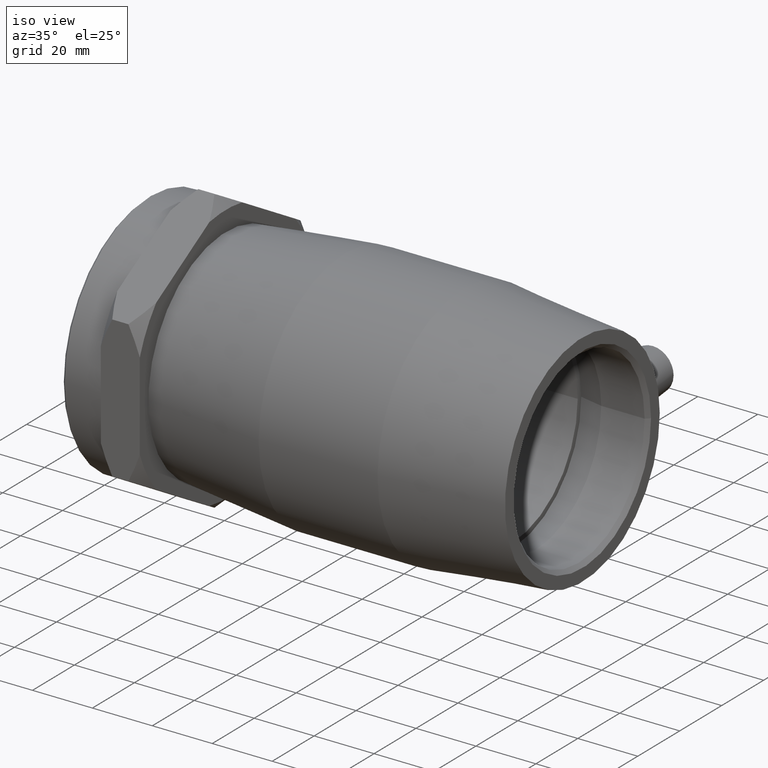
[diagram: clean part render]
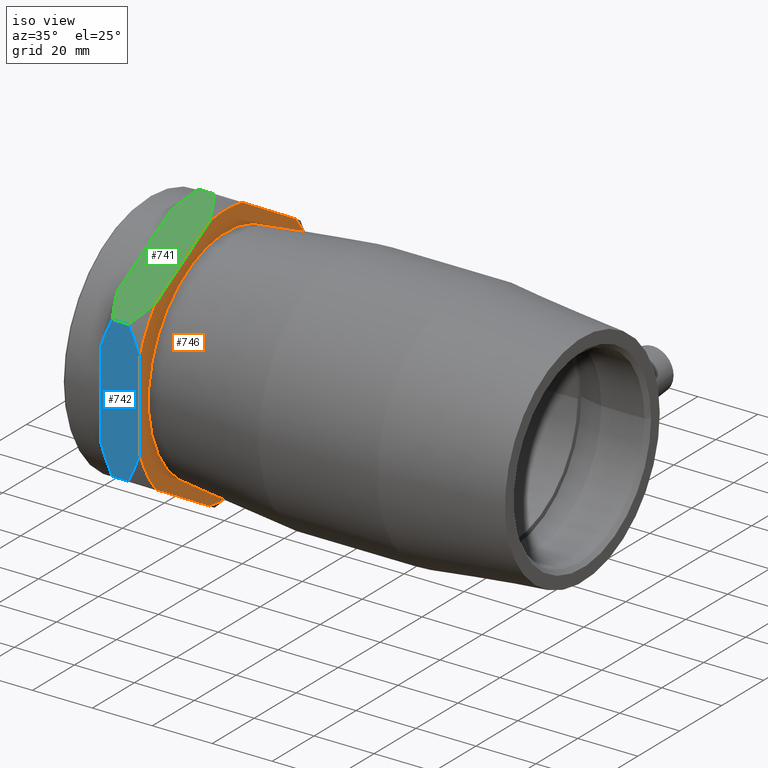
[diagram: same view with three faces highlighted in distinct colors, each labeled with its STEP entity id]
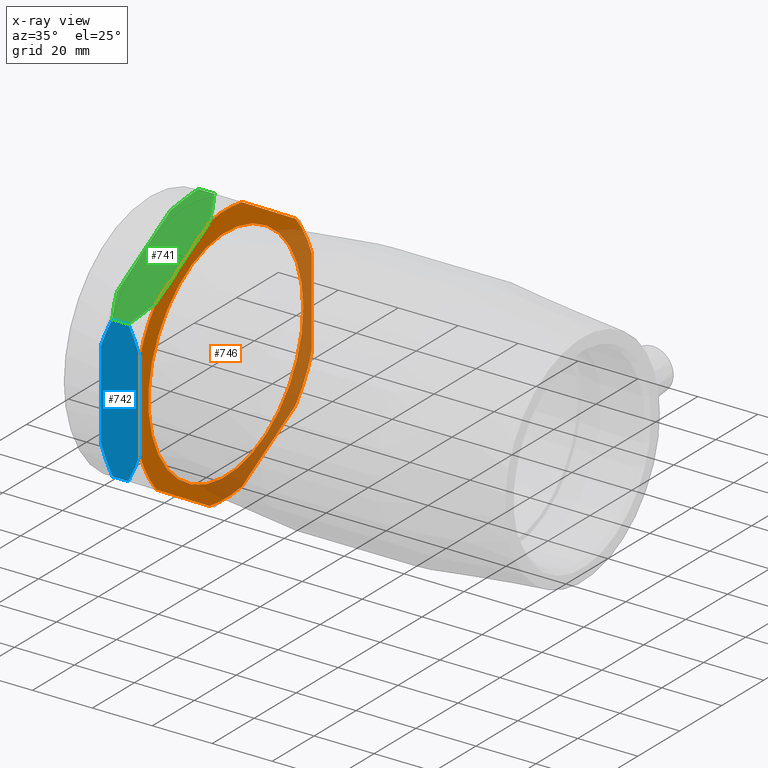
[diagram: x-ray of the same camera — body ghosted, the three highlighted faces saturated]
A machine part, iso view with three faces highlighted in distinct colors.
The next image is the same camera in x-ray (body ghosted, the three faces saturated) — at least one of them is partly hidden behind the body in this view.
Their STEP definitions:

[orange] entity #746 — the highlighted planar face has unit normal (1, 0, 0).
#26=LINE('',#1276,#50);
#30=LINE('',#1281,#54);
#35=LINE('',#1289,#59);
#38=LINE('',#1293,#62);
#39=LINE('',#1295,#63);
#40=LINE('',#1297,#64);
#50=VECTOR('',#982,29.3236181651827);
#54=VECTOR('',#988,29.3236181651827);
#59=VECTOR('',#999,29.3236181651827);
#62=VECTOR('',#1004,29.3236181651827);
#63=VECTOR('',#1007,29.3236181651827);
#64=VECTOR('',#1010,29.3236181651827);
#114=PLANE('',#831);
#133=FACE_BOUND('',#252,.T.);
#187=FACE_OUTER_BOUND('',#251,.T.);
#251=EDGE_LOOP('',(#641,#642,#643,#644,#645,#646,#647,#648,#649,#650,#651,
#652));
#252=EDGE_LOOP('',(#653));
#312=CIRCLE('',#804,43.5427220735493);
#313=CIRCLE('',#806,43.5427220735493);
#314=CIRCLE('',#808,43.5427220735493);
#315=CIRCLE('',#810,43.5427220735493);
#316=CIRCLE('',#812,43.5427220735493);
#317=CIRCLE('',#814,43.5427220735493);
#320=CIRCLE('',#832,36.9);
#369=VERTEX_POINT('',#1197);
#371=VERTEX_POINT('',#1202);
#372=VERTEX_POINT('',#1208);
#374=VERTEX_POINT('',#1213);
#376=VERTEX_POINT('',#1220);
#377=VERTEX_POINT('',#1224);
#379=VERTEX_POINT('',#1231);
#380=VERTEX_POINT('',#1235);
#381=VERTEX_POINT('',#1241);
#383=VERTEX_POINT('',#1246);
#384=VERTEX_POINT('',#1252);
#386=VERTEX_POINT('',#1257);
#389=VERTEX_POINT('',#1305);
#441=EDGE_CURVE('',#371,#369,#312,.T.);
#444=EDGE_CURVE('',#374,#372,#313,.T.);
#448=EDGE_CURVE('',#376,#377,#314,.T.);
#451=EDGE_CURVE('',#379,#380,#315,.T.);
#453=EDGE_CURVE('',#383,#381,#316,.T.);
#456=EDGE_CURVE('',#386,#384,#317,.T.);
#467=EDGE_CURVE('',#386,#380,#26,.T.);
#471=EDGE_CURVE('',#383,#384,#30,.T.);
#476=EDGE_CURVE('',#374,#377,#35,.T.);
#479=EDGE_CURVE('',#371,#372,#38,.T.);
#480=EDGE_CURVE('',#379,#369,#39,.T.);
#481=EDGE_CURVE('',#376,#381,#40,.T.);
#484=EDGE_CURVE('',#389,#389,#320,.T.);
#641=ORIENTED_EDGE('',*,*,#456,.T.);
#642=ORIENTED_EDGE('',*,*,#471,.F.);
#643=ORIENTED_EDGE('',*,*,#453,.T.);
#644=ORIENTED_EDGE('',*,*,#481,.F.);
#645=ORIENTED_EDGE('',*,*,#448,.T.);
#646=ORIENTED_EDGE('',*,*,#476,.F.);
#647=ORIENTED_EDGE('',*,*,#444,.T.);
#648=ORIENTED_EDGE('',*,*,#479,.F.);
#649=ORIENTED_EDGE('',*,*,#441,.T.);
#650=ORIENTED_EDGE('',*,*,#480,.F.);
#651=ORIENTED_EDGE('',*,*,#451,.T.);
#652=ORIENTED_EDGE('',*,*,#467,.F.);
#653=ORIENTED_EDGE('',*,*,#484,.F.);
#746=ADVANCED_FACE('',(#187,#133),#114,.T.);
#804=AXIS2_PLACEMENT_3D('',#1203,#941,#942);
#806=AXIS2_PLACEMENT_3D('',#1214,#945,#946);
#808=AXIS2_PLACEMENT_3D('',#1228,#949,#950);
#810=AXIS2_PLACEMENT_3D('',#1239,#953,#954);
#812=AXIS2_PLACEMENT_3D('',#1247,#957,#958);
#814=AXIS2_PLACEMENT_3D('',#1258,#961,#962);
#831=AXIS2_PLACEMENT_3D('',#1304,#1019,#1020);
#832=AXIS2_PLACEMENT_3D('',#1306,#1021,#1022);
#941=DIRECTION('center_axis',(1.,0.,0.));
#942=DIRECTION('ref_axis',(0.,0.,1.));
#945=DIRECTION('center_axis',(1.,0.,0.));
#946=DIRECTION('ref_axis',(0.,0.,1.));
#949=DIRECTION('center_axis',(1.,0.,0.));
#950=DIRECTION('ref_axis',(0.,0.,1.));
#953=DIRECTION('center_axis',(1.,0.,0.));
#954=DIRECTION('ref_axis',(0.,0.,1.));
#957=DIRECTION('center_axis',(1.,0.,0.));
#958=DIRECTION('ref_axis',(0.,0.,1.));
#961=DIRECTION('center_axis',(1.,0.,0.));
#962=DIRECTION('ref_axis',(0.,0.,1.));
#982=DIRECTION('',(0.,-0.866025403784439,0.499999999999999));
#988=DIRECTION('',(0.,-0.866025403784438,-0.500000000000001));
#999=DIRECTION('',(0.,0.86602540378444,-0.499999999999998));
#1004=DIRECTION('',(0.,0.866025403784438,0.500000000000002));
#1007=DIRECTION('',(0.,-1.68845504170264E-15,1.));
#1010=DIRECTION('',(0.,1.5008489259579E-15,-1.));
#1019=DIRECTION('center_axis',(1.,0.,0.));
#1020=DIRECTION('ref_axis',(0.,0.,-1.));
#1021=DIRECTION('center_axis',(1.,0.,0.));
#1022=DIRECTION('ref_axis',(0.,0.,-1.));
#1197=CARTESIAN_POINT('',(-59.5,-41.,14.6618090825913));
#1202=CARTESIAN_POINT('',(-59.5,-33.1974991309616,28.1761370138663));
#1203=CARTESIAN_POINT('Origin',(-59.5,0.,0.));
#1208=CARTESIAN_POINT('',(-59.5,-7.80250086903856,42.8379460964577));
#1213=CARTESIAN_POINT('',(-59.5,7.80250086903837,42.8379460964577));
#1214=CARTESIAN_POINT('Origin',(-59.5,0.,0.));
#1220=CARTESIAN_POINT('',(-59.5,41.,14.6618090825914));
#1224=CARTESIAN_POINT('',(-59.5,33.1974991309615,28.1761370138664));
#1228=CARTESIAN_POINT('Origin',(-59.5,0.,0.));
#1231=CARTESIAN_POINT('',(-59.5,-41.,-14.6618090825914));
#1235=CARTESIAN_POINT('',(-59.5,-33.1974991309615,-28.1761370138664));
#1239=CARTESIAN_POINT('Origin',(-59.5,0.,0.));
#1241=CARTESIAN_POINT('',(-59.5,41.,-14.6618090825913));
#1246=CARTESIAN_POINT('',(-59.5,33.1974991309616,-28.1761370138663));
#1247=CARTESIAN_POINT('Origin',(-59.5,0.,0.));
#1252=CARTESIAN_POINT('',(-59.5,7.80250086903854,-42.8379460964577));
#1257=CARTESIAN_POINT('',(-59.5,-7.80250086903842,-42.8379460964577));
#1258=CARTESIAN_POINT('Origin',(-59.5,0.,0.));
#1276=CARTESIAN_POINT('',(-59.5,6.35818307594565E-14,-47.3427220735493));
#1281=CARTESIAN_POINT('',(-59.5,41.,-23.6713610367746));
#1289=CARTESIAN_POINT('',(-59.5,-8.81015690508994E-14,47.3427220735493));
#1293=CARTESIAN_POINT('',(-59.5,-41.0000000000001,23.6713610367746));
#1295=CARTESIAN_POINT('',(-59.5,-41.,-23.6713610367747));
#1297=CARTESIAN_POINT('',(-59.5,41.,23.6713610367747));
#1304=CARTESIAN_POINT('Origin',(-59.5,31.5,0.));
#1305=CARTESIAN_POINT('',(-59.5,36.9,0.));
#1306=CARTESIAN_POINT('Origin',(-59.5,0.,0.));

[blue] entity #742 — the highlighted planar face has unit normal (0, -1, -0).
#24=LINE('',#1273,#48);
#27=LINE('',#1277,#51);
#33=LINE('',#1286,#57);
#37=LINE('',#1292,#61);
#39=LINE('',#1295,#63);
#48=VECTOR('',#978,14.6618090825914);
#51=VECTOR('',#983,5.40000000000003);
#57=VECTOR('',#995,14.6618090825913);
#61=VECTOR('',#1003,5.40000000000003);
#63=VECTOR('',#1007,29.3236181651827);
#71=(
BOUNDED_CURVE()
B_SPLINE_CURVE(2,(#1166,#1167,#1168),.UNSPECIFIED.,.F.,.F.)
B_SPLINE_CURVE_WITH_KNOTS((3,3),(0.,0.978402579964024),.UNSPECIFIED.)
CURVE()
GEOMETRIC_REPRESENTATION_ITEM()
RATIONAL_B_SPLINE_CURVE((1.,1.00494997570067,1.))
REPRESENTATION_ITEM('')
);
#73=(
BOUNDED_CURVE()
B_SPLINE_CURVE(2,(#1177,#1178,#1179),.UNSPECIFIED.,.F.,.F.)
B_SPLINE_CURVE_WITH_KNOTS((3,3),(0.,0.978402579964024),.UNSPECIFIED.)
CURVE()
GEOMETRIC_REPRESENTATION_ITEM()
RATIONAL_B_SPLINE_CURVE((1.,1.0049499757007,1.))
REPRESENTATION_ITEM('')
);
#77=(
BOUNDED_CURVE()
B_SPLINE_CURVE(2,(#1199,#1200,#1201),.UNSPECIFIED.,.F.,.F.)
B_SPLINE_CURVE_WITH_KNOTS((3,3),(0.,0.978402579964024),.UNSPECIFIED.)
CURVE()
GEOMETRIC_REPRESENTATION_ITEM()
RATIONAL_B_SPLINE_CURVE((1.,1.00494997570067,1.))
REPRESENTATION_ITEM('')
);
#83=(
BOUNDED_CURVE()
B_SPLINE_CURVE(2,(#1232,#1233,#1234),.UNSPECIFIED.,.F.,.F.)
B_SPLINE_CURVE_WITH_KNOTS((3,3),(0.,0.978402579964024),.UNSPECIFIED.)
CURVE()
GEOMETRIC_REPRESENTATION_ITEM()
RATIONAL_B_SPLINE_CURVE((1.,1.0049499757007,1.))
REPRESENTATION_ITEM('')
);
#111=PLANE('',#825);
#183=FACE_OUTER_BOUND('',#245,.T.);
#245=EDGE_LOOP('',(#619,#620,#621,#622,#623,#624,#625,#626,#627));
#348=VERTEX_POINT('',#1123);
#360=VERTEX_POINT('',#1164);
#361=VERTEX_POINT('',#1165);
#363=VERTEX_POINT('',#1175);
#364=VERTEX_POINT('',#1176);
#369=VERTEX_POINT('',#1197);
#370=VERTEX_POINT('',#1198);
#378=VERTEX_POINT('',#1230);
#379=VERTEX_POINT('',#1231);
#431=EDGE_CURVE('',#360,#361,#71,.T.);
#434=EDGE_CURVE('',#363,#364,#73,.T.);
#440=EDGE_CURVE('',#369,#370,#77,.T.);
#449=EDGE_CURVE('',#378,#379,#83,.T.);
#465=EDGE_CURVE('',#348,#361,#24,.T.);
#468=EDGE_CURVE('',#378,#364,#27,.T.);
#474=EDGE_CURVE('',#363,#348,#33,.T.);
#478=EDGE_CURVE('',#370,#360,#37,.T.);
#480=EDGE_CURVE('',#379,#369,#39,.T.);
#619=ORIENTED_EDGE('',*,*,#434,.T.);
#620=ORIENTED_EDGE('',*,*,#468,.F.);
#621=ORIENTED_EDGE('',*,*,#449,.T.);
#622=ORIENTED_EDGE('',*,*,#480,.T.);
#623=ORIENTED_EDGE('',*,*,#440,.T.);
#624=ORIENTED_EDGE('',*,*,#478,.T.);
#625=ORIENTED_EDGE('',*,*,#431,.T.);
#626=ORIENTED_EDGE('',*,*,#465,.F.);
#627=ORIENTED_EDGE('',*,*,#474,.F.);
#742=ADVANCED_FACE('',(#183),#111,.T.);
#825=AXIS2_PLACEMENT_3D('',#1294,#1005,#1006);
#978=DIRECTION('',(0.,-1.68845504170264E-15,1.));
#983=DIRECTION('',(-1.,0.,0.));
#995=DIRECTION('',(0.,-1.68845504170264E-15,1.));
#1003=DIRECTION('',(-1.,0.,0.));
#1005=DIRECTION('center_axis',(0.,-1.,-1.68845504170264E-15));
#1006=DIRECTION('ref_axis',(0.,-1.4210854715202E-15,1.));
#1007=DIRECTION('',(0.,-1.68845504170264E-15,1.));
#1123=CARTESIAN_POINT('',(-72.5,-41.,-6.88338275267597E-14));
#1164=CARTESIAN_POINT('',(-68.7,-41.,23.6713610367746));
#1165=CARTESIAN_POINT('',(-72.5,-41.,14.6618090825913));
#1166=CARTESIAN_POINT('Ctrl Pts',(-68.7,-41.0000000000001,23.6713610367746));
#1167=CARTESIAN_POINT('Ctrl Pts',(-71.0465623025605,-41.0000000000001,18.9782364316536));
#1168=CARTESIAN_POINT('Ctrl Pts',(-72.5,-41.,14.6618090825913));
#1175=CARTESIAN_POINT('',(-72.5,-41.,-14.6618090825914));
#1176=CARTESIAN_POINT('',(-68.7,-41.,-23.6713610367747));
#1177=CARTESIAN_POINT('Ctrl Pts',(-72.5,-41.,-14.6618090825915));
#1178=CARTESIAN_POINT('Ctrl Pts',(-71.0465623025605,-41.,-18.9782364316537));
#1179=CARTESIAN_POINT('Ctrl Pts',(-68.7,-41.,-23.6713610367747));
#1197=CARTESIAN_POINT('',(-59.5,-41.,14.6618090825913));
#1198=CARTESIAN_POINT('',(-63.3,-41.,23.6713610367746));
#1199=CARTESIAN_POINT('Ctrl Pts',(-59.5,-41.,14.6618090825913));
#1200=CARTESIAN_POINT('Ctrl Pts',(-60.9534376974395,-41.0000000000001,18.9782364316536));
#1201=CARTESIAN_POINT('Ctrl Pts',(-63.3,-41.0000000000001,23.6713610367746));
#1230=CARTESIAN_POINT('',(-63.3,-41.,-23.6713610367747));
#1231=CARTESIAN_POINT('',(-59.5,-41.,-14.6618090825914));
#1232=CARTESIAN_POINT('Ctrl Pts',(-63.3,-41.,-23.6713610367747));
#1233=CARTESIAN_POINT('Ctrl Pts',(-60.9534376974395,-41.,-18.9782364316537));
#1234=CARTESIAN_POINT('Ctrl Pts',(-59.5,-41.,-14.6618090825915));
#1273=CARTESIAN_POINT('',(-72.5,-41.,-23.6713610367747));
#1277=CARTESIAN_POINT('',(-59.5,-41.,-23.6713610367747));
#1286=CARTESIAN_POINT('',(-72.5,-41.,-23.6713610367747));
#1292=CARTESIAN_POINT('',(-59.5,-41.0000000000001,23.6713610367746));
#1294=CARTESIAN_POINT('Origin',(-59.5,-41.,-23.6713610367747));
#1295=CARTESIAN_POINT('',(-59.5,-41.,-23.6713610367747));

[green] entity #741 — the highlighted planar face has unit normal (0, -0.5, 0.866).
#22=LINE('',#1270,#46);
#23=LINE('',#1272,#47);
#34=LINE('',#1288,#58);
#37=LINE('',#1292,#61);
#38=LINE('',#1293,#62);
#46=VECTOR('',#974,14.6618090825914);
#47=VECTOR('',#977,14.6618090825914);
#58=VECTOR('',#998,5.40000000000001);
#61=VECTOR('',#1003,5.40000000000003);
#62=VECTOR('',#1004,29.3236181651827);
#67=(
BOUNDED_CURVE()
B_SPLINE_CURVE(2,(#1144,#1145,#1146),.UNSPECIFIED.,.F.,.F.)
B_SPLINE_CURVE_WITH_KNOTS((3,3),(0.,0.978402579964025),.UNSPECIFIED.)
CURVE()
GEOMETRIC_REPRESENTATION_ITEM()
RATIONAL_B_SPLINE_CURVE((1.,1.00494997570067,1.))
REPRESENTATION_ITEM('')
);
#72=(
BOUNDED_CURVE()
B_SPLINE_CURVE(2,(#1170,#1171,#1172),.UNSPECIFIED.,.F.,.F.)
B_SPLINE_CURVE_WITH_KNOTS((3,3),(0.,0.978402579964024),.UNSPECIFIED.)
CURVE()
GEOMETRIC_REPRESENTATION_ITEM()
RATIONAL_B_SPLINE_CURVE((1.,1.00494997570078,1.))
REPRESENTATION_ITEM('')
);
#78=(
BOUNDED_CURVE()
B_SPLINE_CURVE(2,(#1204,#1205,#1206),.UNSPECIFIED.,.F.,.F.)
B_SPLINE_CURVE_WITH_KNOTS((3,3),(0.,0.978402579964024),.UNSPECIFIED.)
CURVE()
GEOMETRIC_REPRESENTATION_ITEM()
RATIONAL_B_SPLINE_CURVE((1.,1.00494997570078,1.))
REPRESENTATION_ITEM('')
);
#79=(
BOUNDED_CURVE()
B_SPLINE_CURVE(2,(#1210,#1211,#1212),.UNSPECIFIED.,.F.,.F.)
B_SPLINE_CURVE_WITH_KNOTS((3,3),(0.,0.978402579964025),.UNSPECIFIED.)
CURVE()
GEOMETRIC_REPRESENTATION_ITEM()
RATIONAL_B_SPLINE_CURVE((1.,1.00494997570067,1.))
REPRESENTATION_ITEM('')
);
#110=PLANE('',#824);
#182=FACE_OUTER_BOUND('',#244,.T.);
#244=EDGE_LOOP('',(#610,#611,#612,#613,#614,#615,#616,#617,#618));
#349=VERTEX_POINT('',#1125);
#354=VERTEX_POINT('',#1142);
#355=VERTEX_POINT('',#1143);
#360=VERTEX_POINT('',#1164);
#362=VERTEX_POINT('',#1169);
#370=VERTEX_POINT('',#1198);
#371=VERTEX_POINT('',#1202);
#372=VERTEX_POINT('',#1208);
#373=VERTEX_POINT('',#1209);
#425=EDGE_CURVE('',#354,#355,#67,.T.);
#432=EDGE_CURVE('',#362,#360,#72,.T.);
#442=EDGE_CURVE('',#370,#371,#78,.T.);
#443=EDGE_CURVE('',#372,#373,#79,.T.);
#463=EDGE_CURVE('',#349,#355,#22,.T.);
#464=EDGE_CURVE('',#362,#349,#23,.T.);
#475=EDGE_CURVE('',#373,#354,#34,.T.);
#478=EDGE_CURVE('',#370,#360,#37,.T.);
#479=EDGE_CURVE('',#371,#372,#38,.T.);
#610=ORIENTED_EDGE('',*,*,#425,.T.);
#611=ORIENTED_EDGE('',*,*,#463,.F.);
#612=ORIENTED_EDGE('',*,*,#464,.F.);
#613=ORIENTED_EDGE('',*,*,#432,.T.);
#614=ORIENTED_EDGE('',*,*,#478,.F.);
#615=ORIENTED_EDGE('',*,*,#442,.T.);
#616=ORIENTED_EDGE('',*,*,#479,.T.);
#617=ORIENTED_EDGE('',*,*,#443,.T.);
#618=ORIENTED_EDGE('',*,*,#475,.T.);
#741=ADVANCED_FACE('',(#182),#110,.T.);
#824=AXIS2_PLACEMENT_3D('',#1291,#1001,#1002);
#974=DIRECTION('',(0.,0.866025403784438,0.500000000000002));
#977=DIRECTION('',(0.,0.866025403784438,0.500000000000002));
#998=DIRECTION('',(-1.,0.,0.));
#1001=DIRECTION('center_axis',(0.,-0.500000000000002,0.866025403784438));
#1002=DIRECTION('ref_axis',(0.,0.866025403784438,0.500000000000002));
#1003=DIRECTION('',(-1.,0.,0.));
#1004=DIRECTION('',(0.,0.866025403784438,0.500000000000002));
#1125=CARTESIAN_POINT('',(-72.5,-20.5000000000001,35.507041555162));
#1142=CARTESIAN_POINT('',(-68.7,0.,47.3427220735493));
#1143=CARTESIAN_POINT('',(-72.5,-7.80250086903856,42.8379460964577));
#1144=CARTESIAN_POINT('Ctrl Pts',(-68.7,-7.8651684655689E-14,47.3427220735493));
#1145=CARTESIAN_POINT('Ctrl Pts',(-71.0465623025605,-4.0643651311607,44.9961597709888));
#1146=CARTESIAN_POINT('Ctrl Pts',(-72.5,-7.80250086903851,42.8379460964577));
#1164=CARTESIAN_POINT('',(-68.7,-41.,23.6713610367746));
#1169=CARTESIAN_POINT('',(-72.5,-33.1974991309616,28.1761370138663));
#1170=CARTESIAN_POINT('Ctrl Pts',(-72.5,-33.1974991309616,28.1761370138662));
#1171=CARTESIAN_POINT('Ctrl Pts',(-71.0465623025606,-36.9356348688394,26.0179233393351));
#1172=CARTESIAN_POINT('Ctrl Pts',(-68.7,-41.0000000000001,23.6713610367746));
#1198=CARTESIAN_POINT('',(-63.3,-41.,23.6713610367746));
#1202=CARTESIAN_POINT('',(-59.5,-33.1974991309616,28.1761370138663));
#1204=CARTESIAN_POINT('Ctrl Pts',(-63.3,-41.0000000000001,23.6713610367746));
#1205=CARTESIAN_POINT('Ctrl Pts',(-60.9534376974395,-36.9356348688394,26.0179233393351));
#1206=CARTESIAN_POINT('Ctrl Pts',(-59.5,-33.1974991309616,28.1761370138662));
#1208=CARTESIAN_POINT('',(-59.5,-7.80250086903856,42.8379460964577));
#1209=CARTESIAN_POINT('',(-63.3,0.,47.3427220735493));
#1210=CARTESIAN_POINT('Ctrl Pts',(-59.5,-7.80250086903851,42.8379460964577));
#1211=CARTESIAN_POINT('Ctrl Pts',(-60.9534376974395,-4.0643651311607,44.9961597709888));
#1212=CARTESIAN_POINT('Ctrl Pts',(-63.3,-7.8651684655689E-14,47.3427220735493));
#1270=CARTESIAN_POINT('',(-72.5,-41.0000000000001,23.6713610367746));
#1272=CARTESIAN_POINT('',(-72.5,-41.0000000000001,23.6713610367746));
#1288=CARTESIAN_POINT('',(-59.5,-8.81015690508994E-14,47.3427220735493));
#1291=CARTESIAN_POINT('Origin',(-59.5,-41.0000000000001,23.6713610367746));
#1292=CARTESIAN_POINT('',(-59.5,-41.0000000000001,23.6713610367746));
#1293=CARTESIAN_POINT('',(-59.5,-41.0000000000001,23.6713610367746));